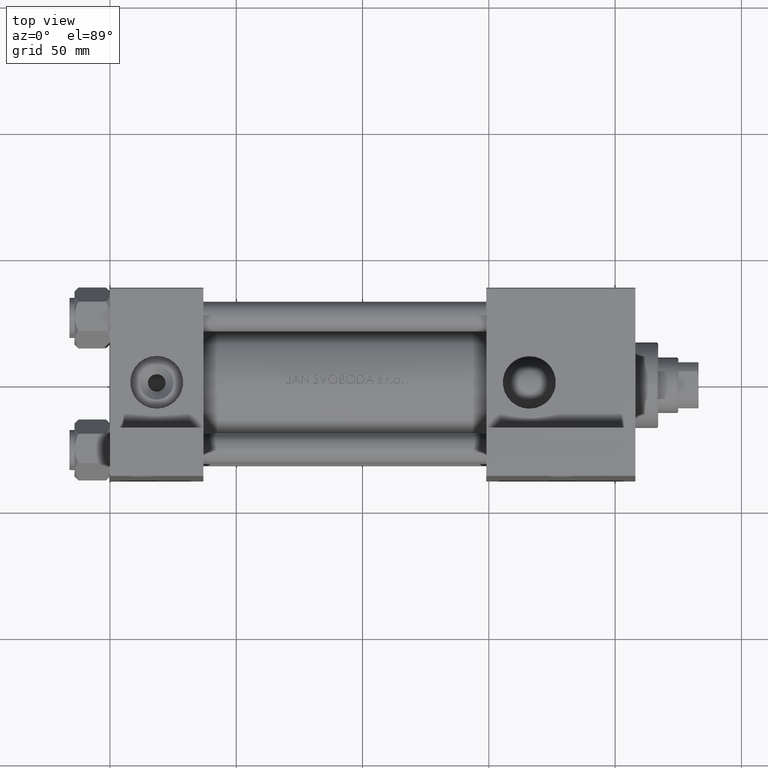
[diagram: clean part render]
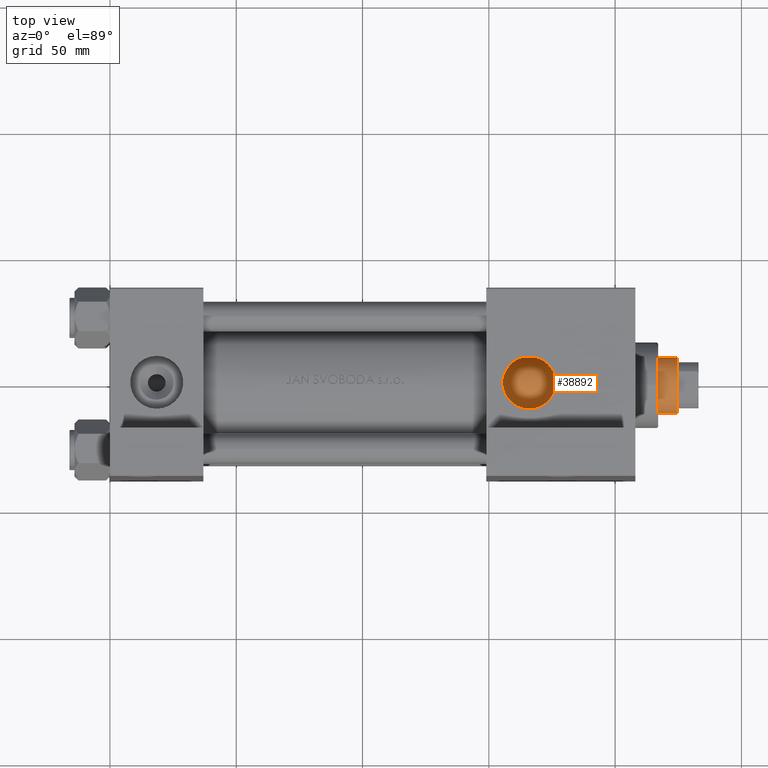
[diagram: same view with one face highlighted and labeled with its STEP entity id]
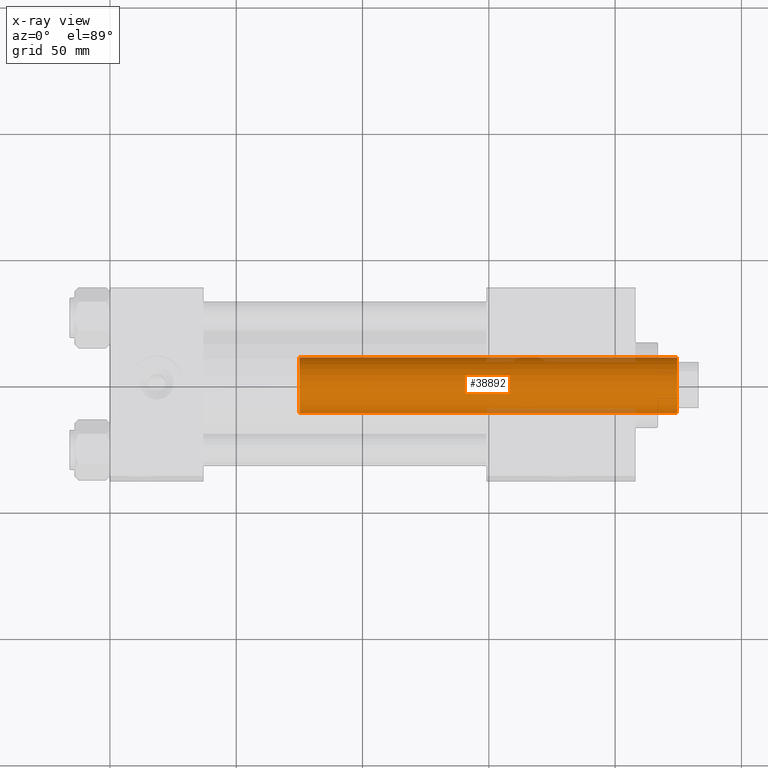
[diagram: x-ray of the same camera — body ghosted, the highlighted face saturated]
A machine part, top view. The second image highlights one B-rep face of the part: STEP entity #38892.
The next image is the same camera in x-ray: the body ghosted, the highlighted face saturated — about 6% of this face is hidden behind the body in this view.
In plain terms, the highlighted cylindrical surface (edge-blend (fillet) strip) has radius 11 mm, axis along (-1, 0, 0).
Its self-contained STEP definition (entity closure, byte-faithful):
#1743 = CYLINDRICAL_SURFACE ( 'NONE', #14286, 11.00000000000000000 ) ;
#2257 = AXIS2_PLACEMENT_3D ( 'NONE', #6544, #30446, #29452 ) ;
#4939 = CARTESIAN_POINT ( 'NONE',  ( -11.00000000000000000, 0.000000000000000000, 188.0000000000000000 ) ) ;
#5267 = EDGE_CURVE ( 'NONE', #48167, #31822, #16652, .T. ) ;
#5763 = EDGE_LOOP ( 'NONE', ( #30091, #31684, #14517, #11963 ) ) ;
#5774 = CIRCLE ( 'NONE', #37596, 11.00000000000000000 ) ;
#6544 = CARTESIAN_POINT ( 'NONE',  ( 0.000000000000000000, 0.000000000000000000, 187.5000000000000000 ) ) ;
#8504 = LINE ( 'NONE', #34912, #13592 ) ;
#8736 = DIRECTION ( 'NONE',  ( -0.000000000000000000, -0.000000000000000000, -1.000000000000000000 ) ) ;
#9151 = DIRECTION ( 'NONE',  ( 1.000000000000000000, 0.000000000000000000, 0.000000000000000000 ) ) ;
#11963 = ORIENTED_EDGE ( 'NONE', *, *, #45687, .T. ) ;
#13129 = DIRECTION ( 'NONE',  ( 0.000000000000000000, 0.000000000000000000, 1.000000000000000000 ) ) ;
#13592 = VECTOR ( 'NONE', #34417, 1000.000000000000000 ) ;
#14286 = AXIS2_PLACEMENT_3D ( 'NONE', #31647, #8736, #16457 ) ;
#14517 = ORIENTED_EDGE ( 'NONE', *, *, #5267, .T. ) ;
#16457 = DIRECTION ( 'NONE',  ( -1.000000000000000000, 0.000000000000000000, 0.000000000000000000 ) ) ;
#16652 = LINE ( 'NONE', #4939, #19676 ) ;
#19676 = VECTOR ( 'NONE', #38820, 1000.000000000000000 ) ;
#20385 = CARTESIAN_POINT ( 'NONE',  ( -11.00000000000000000, 0.000000000000000000, 38.00000000000000000 ) ) ;
#20543 = EDGE_CURVE ( 'NONE', #39170, #41041, #8504, .T. ) ;
#25299 = CARTESIAN_POINT ( 'NONE',  ( 11.00000000000000000, 1.347111479062088405E-15, 38.00000000000000000 ) ) ;
#27130 = CARTESIAN_POINT ( 'NONE',  ( -11.00000000000000000, 0.000000000000000000, 187.5000000000000000 ) ) ;
#29452 = DIRECTION ( 'NONE',  ( 1.000000000000000000, 0.000000000000000000, 0.000000000000000000 ) ) ;
#30091 = ORIENTED_EDGE ( 'NONE', *, *, #20543, .F. ) ;
#30446 = DIRECTION ( 'NONE',  ( 0.000000000000000000, 0.000000000000000000, -1.000000000000000000 ) ) ;
#31647 = CARTESIAN_POINT ( 'NONE',  ( 0.000000000000000000, 0.000000000000000000, 188.0000000000000000 ) ) ;
#31684 = ORIENTED_EDGE ( 'NONE', *, *, #35822, .T. ) ;
#31822 = VERTEX_POINT ( 'NONE', #20385 ) ;
#33262 = CIRCLE ( 'NONE', #2257, 11.00000000000000000 ) ;
#34417 = DIRECTION ( 'NONE',  ( -0.000000000000000000, -0.000000000000000000, -1.000000000000000000 ) ) ;
#34891 = FACE_OUTER_BOUND ( 'NONE', #5763, .T. ) ;
#34912 = CARTESIAN_POINT ( 'NONE',  ( 11.00000000000000000, 1.347111479062088405E-15, 188.0000000000000000 ) ) ;
#35803 = CARTESIAN_POINT ( 'NONE',  ( 0.000000000000000000, 0.000000000000000000, 38.00000000000000000 ) ) ;
#35822 = EDGE_CURVE ( 'NONE', #39170, #48167, #33262, .T. ) ;
#37596 = AXIS2_PLACEMENT_3D ( 'NONE', #35803, #13129, #9151 ) ;
#38820 = DIRECTION ( 'NONE',  ( -0.000000000000000000, -0.000000000000000000, -1.000000000000000000 ) ) ;
#38892 = ADVANCED_FACE ( 'NONE', ( #34891 ), #1743, .T. ) ;
#39170 = VERTEX_POINT ( 'NONE', #47271 ) ;
#41041 = VERTEX_POINT ( 'NONE', #25299 ) ;
#45687 = EDGE_CURVE ( 'NONE', #31822, #41041, #5774, .T. ) ;
#47271 = CARTESIAN_POINT ( 'NONE',  ( 11.00000000000000000, 1.347111479062088405E-15, 187.5000000000000000 ) ) ;
#48167 = VERTEX_POINT ( 'NONE', #27130 ) ;